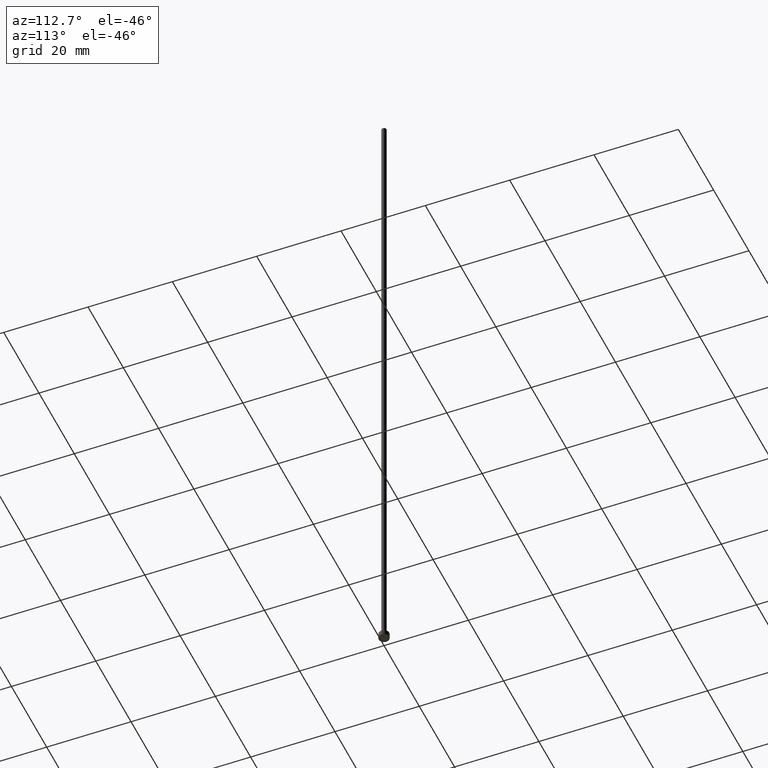
[diagram: clean part render]
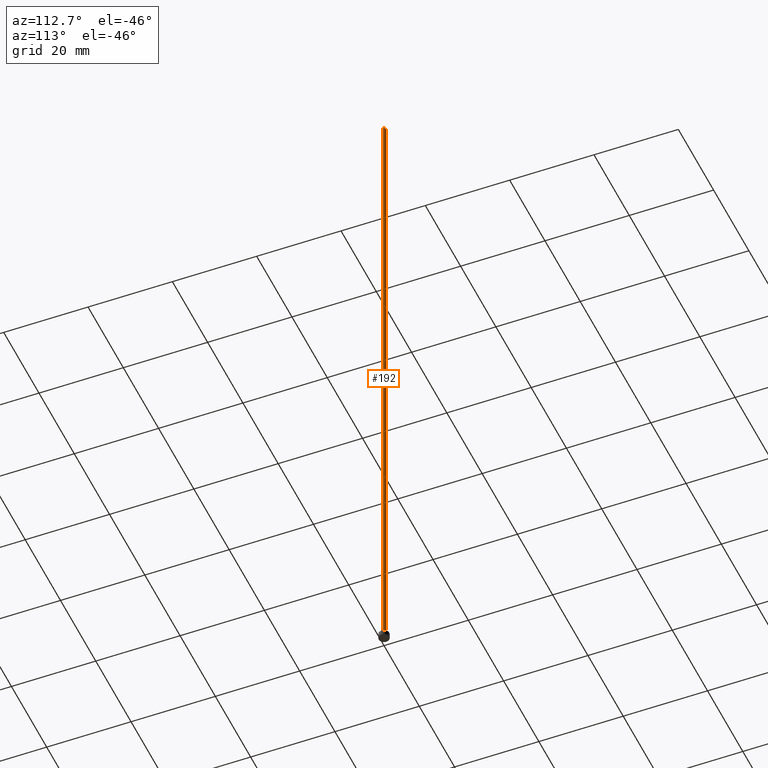
[diagram: same view with one face highlighted and labeled with its STEP entity id]
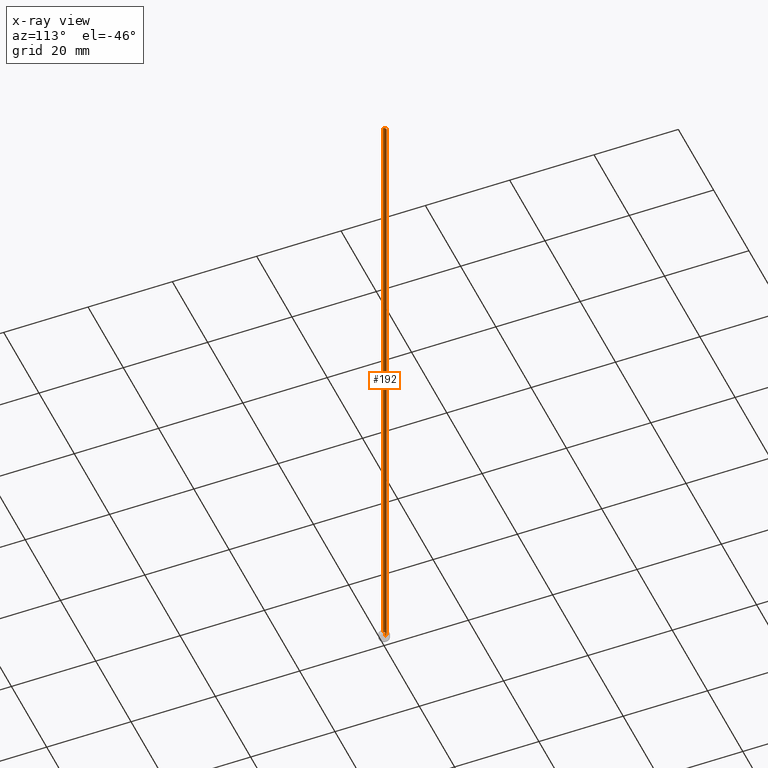
[diagram: x-ray of the same camera — body ghosted, the highlighted face saturated]
A machine part, auxiliary view. The second image highlights one B-rep face of the part: STEP entity #192.
The next image is the same camera in x-ray: the body ghosted, the highlighted face saturated — about 0% of this face is hidden behind the body in this view.
In plain terms, the highlighted cylindrical surface (edge-blend (fillet) strip) has radius 0.6 mm, axis along (-0, -0, -1).
Its self-contained STEP definition (entity closure, byte-faithful):
#9 = AXIS2_PLACEMENT_3D ( 'NONE', #150, #212, #35 ) ;
#11 = DIRECTION ( 'NONE',  ( -0.000000000000000000, -0.000000000000000000, -1.000000000000000000 ) ) ;
#14 = CARTESIAN_POINT ( 'NONE',  ( 0.5999999999999999778, 7.347880794884117764E-17, 160.0000000000000284 ) ) ;
#25 = DIRECTION ( 'NONE',  ( 0.000000000000000000, 0.000000000000000000, 1.000000000000000000 ) ) ;
#31 = AXIS2_PLACEMENT_3D ( 'NONE', #33, #214, #72 ) ;
#32 = CARTESIAN_POINT ( 'NONE',  ( 0.5999999999999999778, 7.347880794884117764E-17, 160.0000000000000284 ) ) ;
#33 = CARTESIAN_POINT ( 'NONE',  ( 0.000000000000000000, 0.000000000000000000, 160.0000000000000284 ) ) ;
#35 = DIRECTION ( 'NONE',  ( -1.000000000000000000, 0.000000000000000000, 0.000000000000000000 ) ) ;
#45 = VERTEX_POINT ( 'NONE', #132 ) ;
#47 = CARTESIAN_POINT ( 'NONE',  ( -0.5999999999999999778, 0.000000000000000000, 1.199999999999999956 ) ) ;
#48 = CARTESIAN_POINT ( 'NONE',  ( -0.5999999999999999778, 0.000000000000000000, 160.0000000000000284 ) ) ;
#54 = ORIENTED_EDGE ( 'NONE', *, *, #251, .F. ) ;
#72 = DIRECTION ( 'NONE',  ( 1.000000000000000000, 0.000000000000000000, 0.000000000000000000 ) ) ;
#89 = CARTESIAN_POINT ( 'NONE',  ( 0.000000000000000000, 0.000000000000000000, 1.199999999999999956 ) ) ;
#94 = LINE ( 'NONE', #14, #235 ) ;
#97 = EDGE_CURVE ( 'NONE', #45, #184, #226, .T. ) ;
#113 = ORIENTED_EDGE ( 'NONE', *, *, #204, .F. ) ;
#132 = CARTESIAN_POINT ( 'NONE',  ( 0.5999999999999999778, 7.347880794884117764E-17, 1.199999999999999956 ) ) ;
#146 = CIRCLE ( 'NONE', #31, 0.5999999999999999778 ) ;
#150 = CARTESIAN_POINT ( 'NONE',  ( 0.000000000000000000, 0.000000000000000000, 160.0000000000000284 ) ) ;
#158 = VECTOR ( 'NONE', #232, 1000.000000000000000 ) ;
#168 = CYLINDRICAL_SURFACE ( 'NONE', #9, 0.5999999999999999778 ) ;
#181 = ORIENTED_EDGE ( 'NONE', *, *, #97, .T. ) ;
#184 = VERTEX_POINT ( 'NONE', #47 ) ;
#187 = FACE_OUTER_BOUND ( 'NONE', #255, .T. ) ;
#192 = ADVANCED_FACE ( 'NONE', ( #187 ), #168, .T. ) ;
#196 = LINE ( 'NONE', #211, #158 ) ;
#197 = EDGE_CURVE ( 'NONE', #220, #45, #94, .T. ) ;
#199 = AXIS2_PLACEMENT_3D ( 'NONE', #89, #25, #203 ) ;
#203 = DIRECTION ( 'NONE',  ( 1.000000000000000000, 0.000000000000000000, 0.000000000000000000 ) ) ;
#204 = EDGE_CURVE ( 'NONE', #217, #184, #196, .T. ) ;
#211 = CARTESIAN_POINT ( 'NONE',  ( -0.5999999999999999778, 0.000000000000000000, 160.0000000000000284 ) ) ;
#212 = DIRECTION ( 'NONE',  ( -0.000000000000000000, -0.000000000000000000, -1.000000000000000000 ) ) ;
#214 = DIRECTION ( 'NONE',  ( 0.000000000000000000, 0.000000000000000000, 1.000000000000000000 ) ) ;
#217 = VERTEX_POINT ( 'NONE', #48 ) ;
#220 = VERTEX_POINT ( 'NONE', #32 ) ;
#226 = CIRCLE ( 'NONE', #199, 0.5999999999999999778 ) ;
#232 = DIRECTION ( 'NONE',  ( -0.000000000000000000, -0.000000000000000000, -1.000000000000000000 ) ) ;
#234 = ORIENTED_EDGE ( 'NONE', *, *, #197, .T. ) ;
#235 = VECTOR ( 'NONE', #11, 1000.000000000000000 ) ;
#251 = EDGE_CURVE ( 'NONE', #220, #217, #146, .T. ) ;
#255 = EDGE_LOOP ( 'NONE', ( #54, #234, #181, #113 ) ) ;